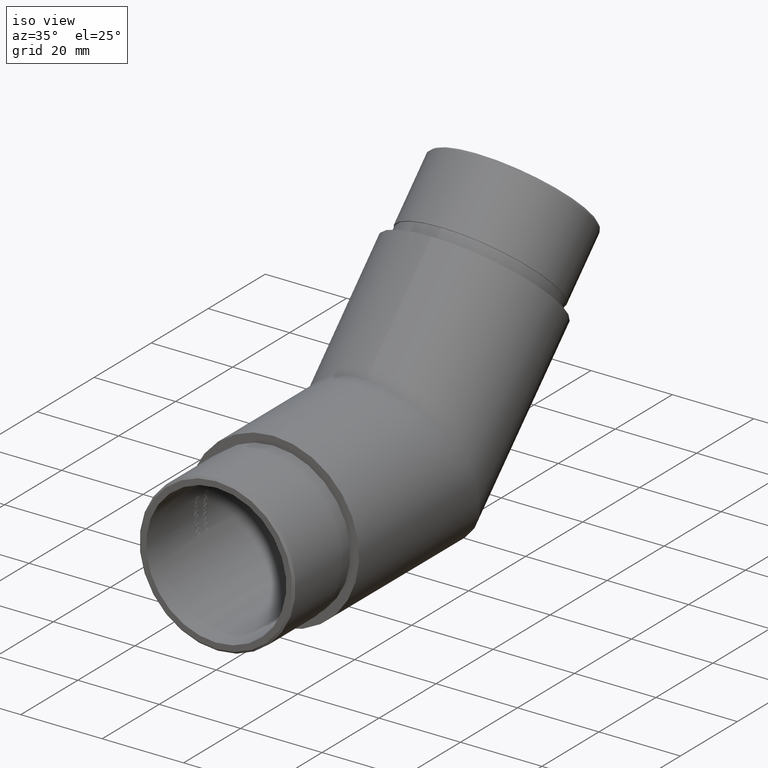
[diagram: clean part render]
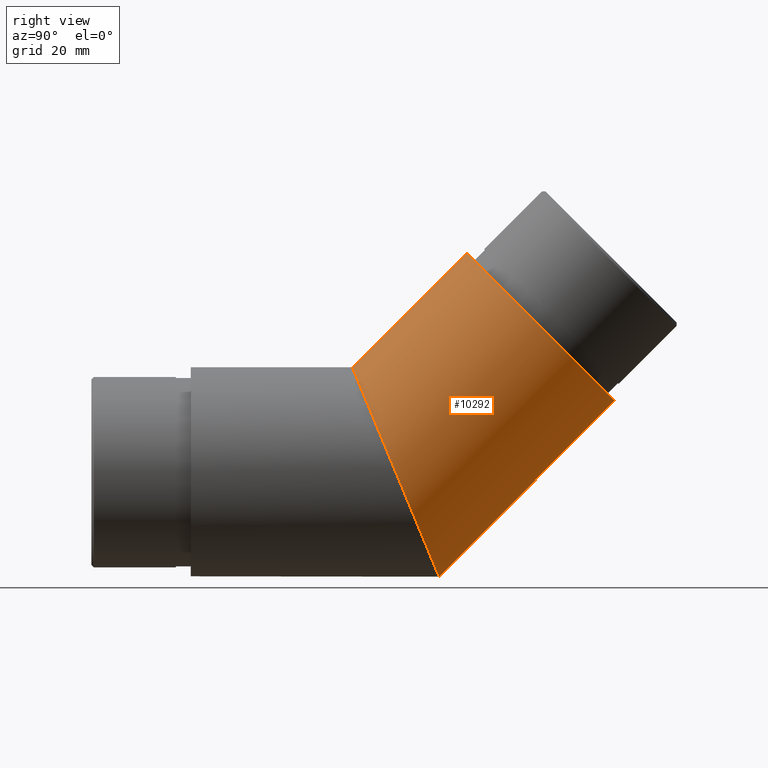
[diagram: tour spotlight — one face highlighted and labeled with its STEP entity id]
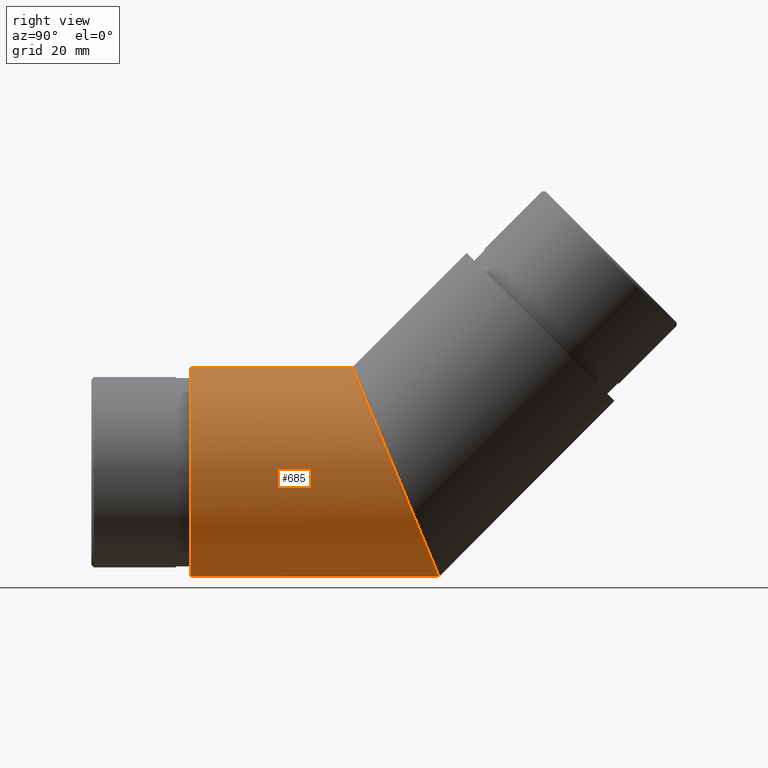
[diagram: tour spotlight — one face highlighted and labeled with its STEP entity id]
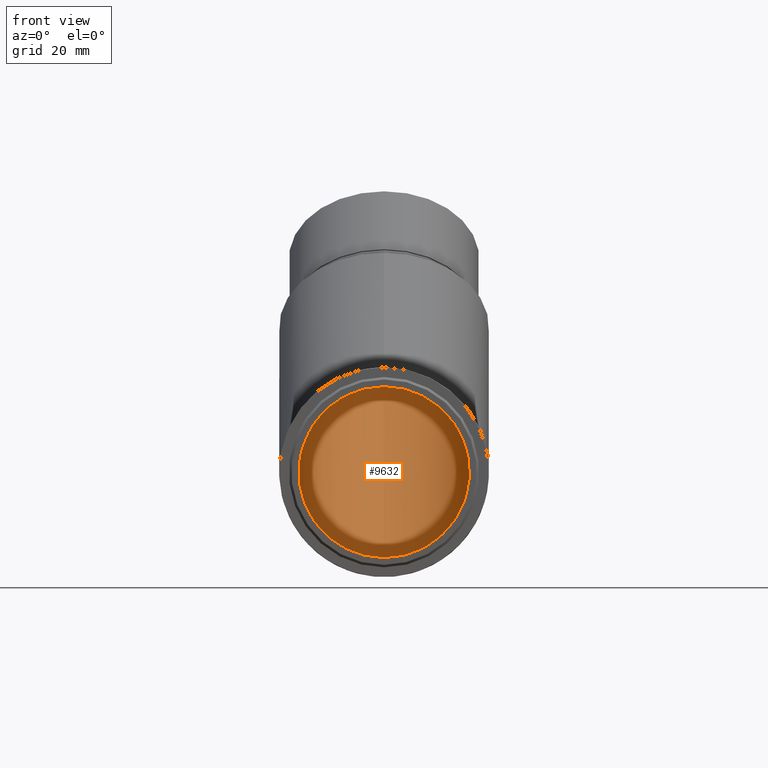
[diagram: tour spotlight — one face highlighted and labeled with its STEP entity id]
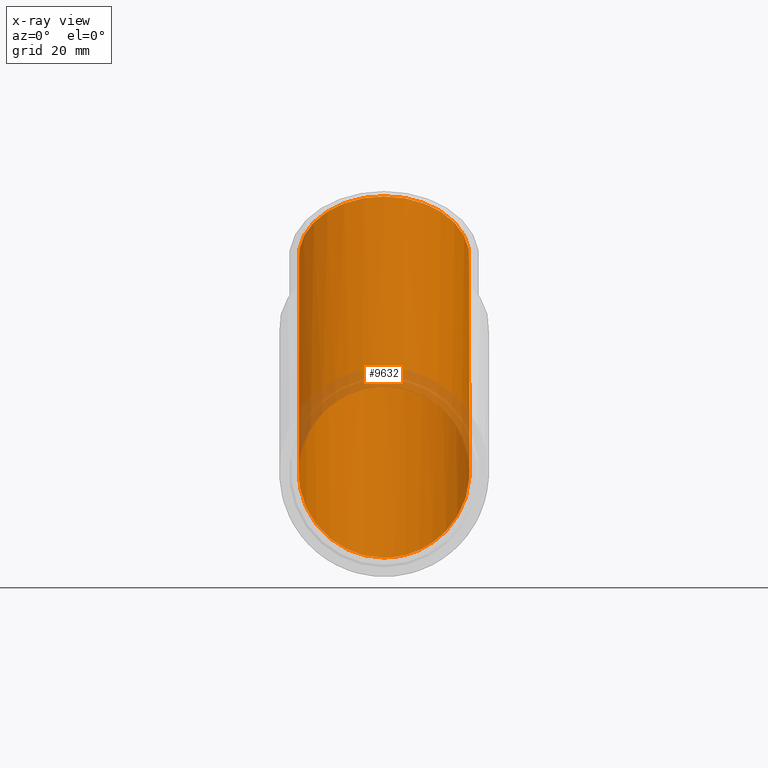
[diagram: x-ray of the same camera — body ghosted, this tour face saturated]
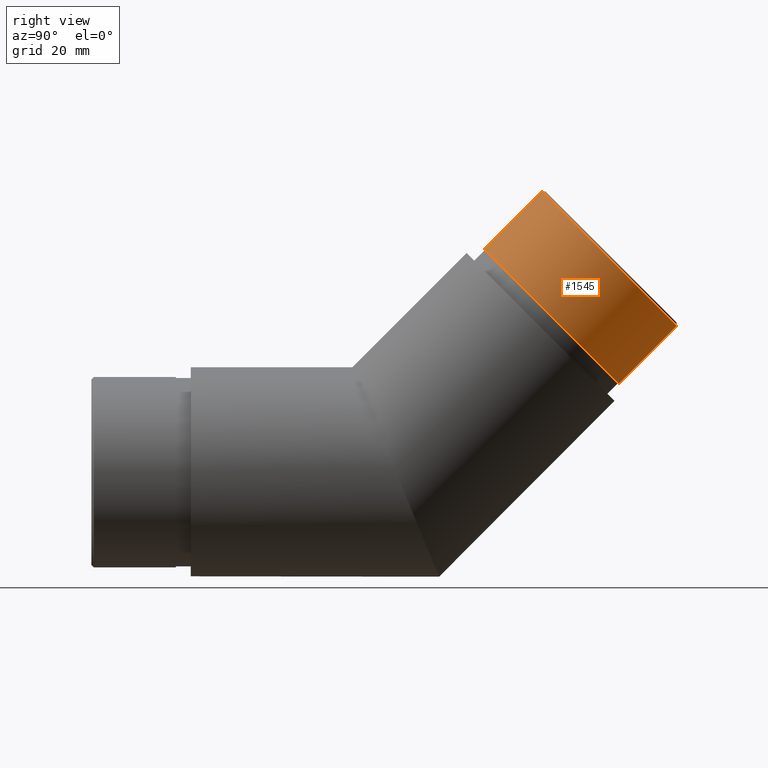
[diagram: tour spotlight — one face highlighted and labeled with its STEP entity id]
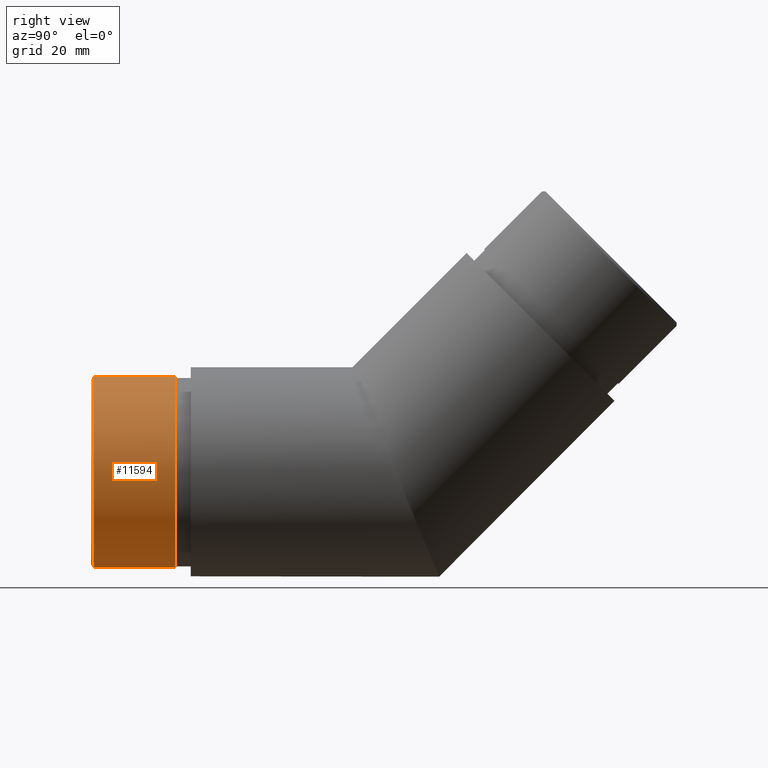
[diagram: tour spotlight — one face highlighted and labeled with its STEP entity id]
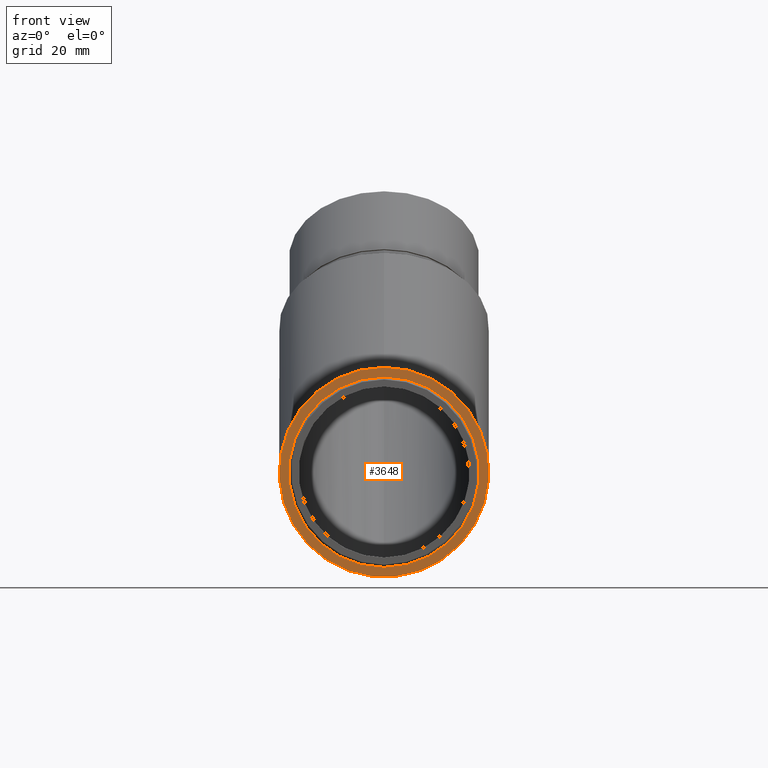
[diagram: tour spotlight — one face highlighted and labeled with its STEP entity id]
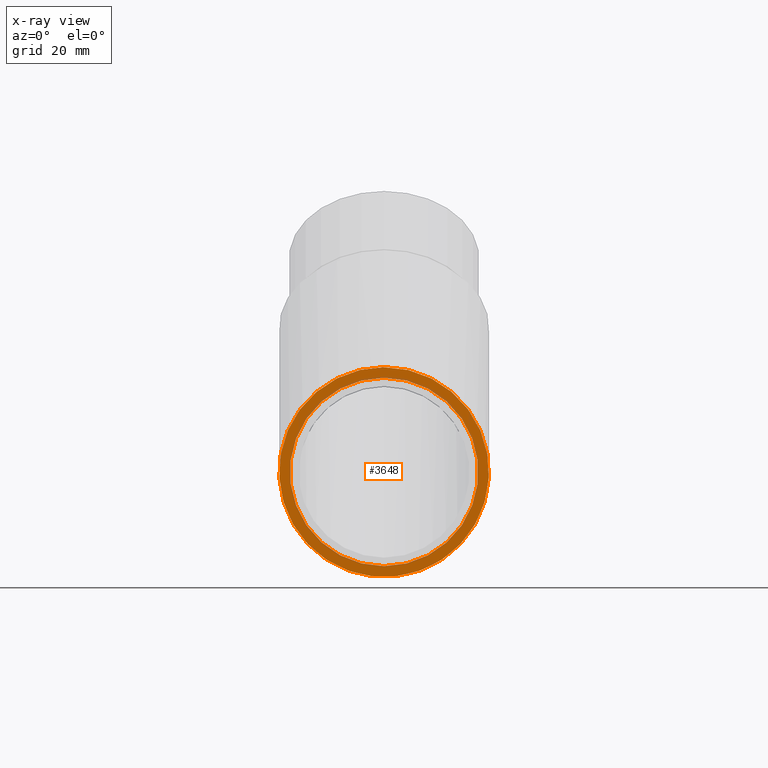
[diagram: x-ray of the same camera — body ghosted, this tour face saturated]
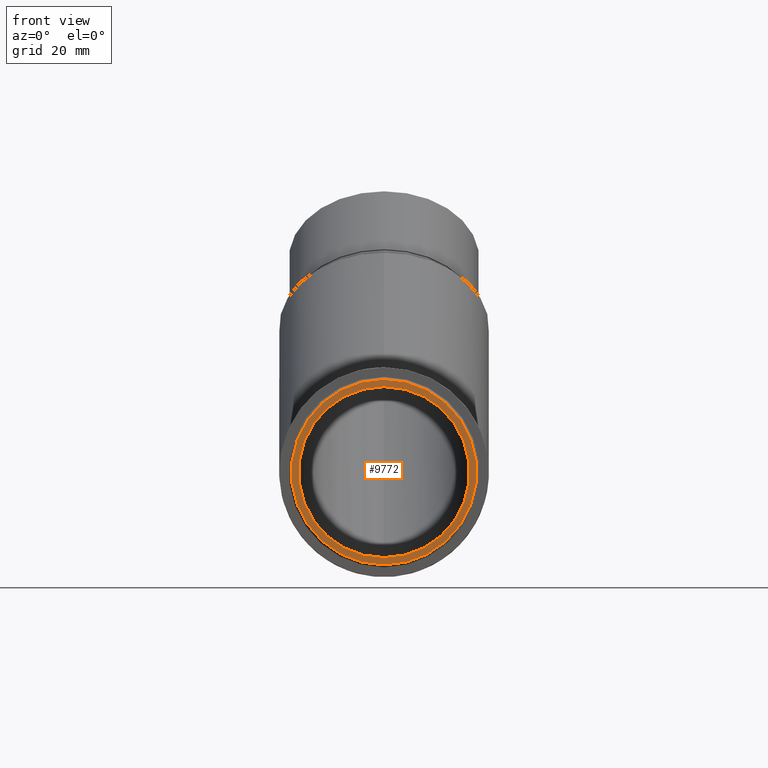
[diagram: tour spotlight — one face highlighted and labeled with its STEP entity id]
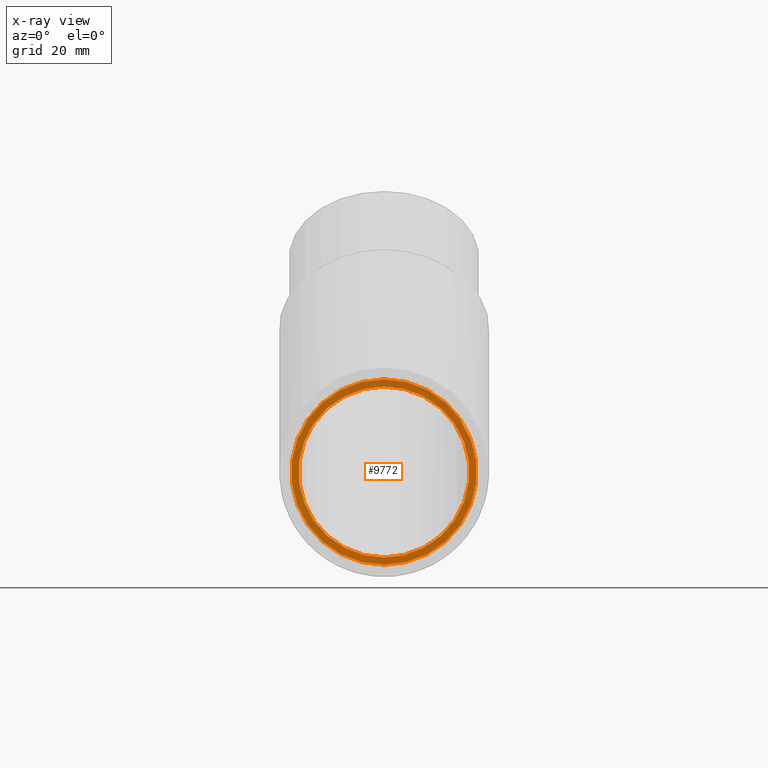
[diagram: x-ray of the same camera — body ghosted, this tour face saturated]
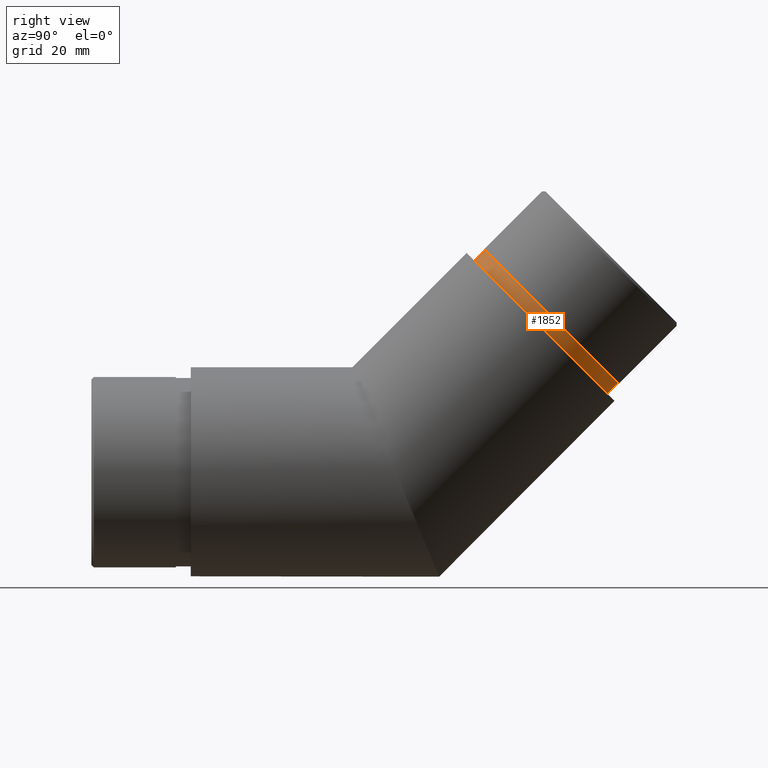
[diagram: tour spotlight — one face highlighted and labeled with its STEP entity id]
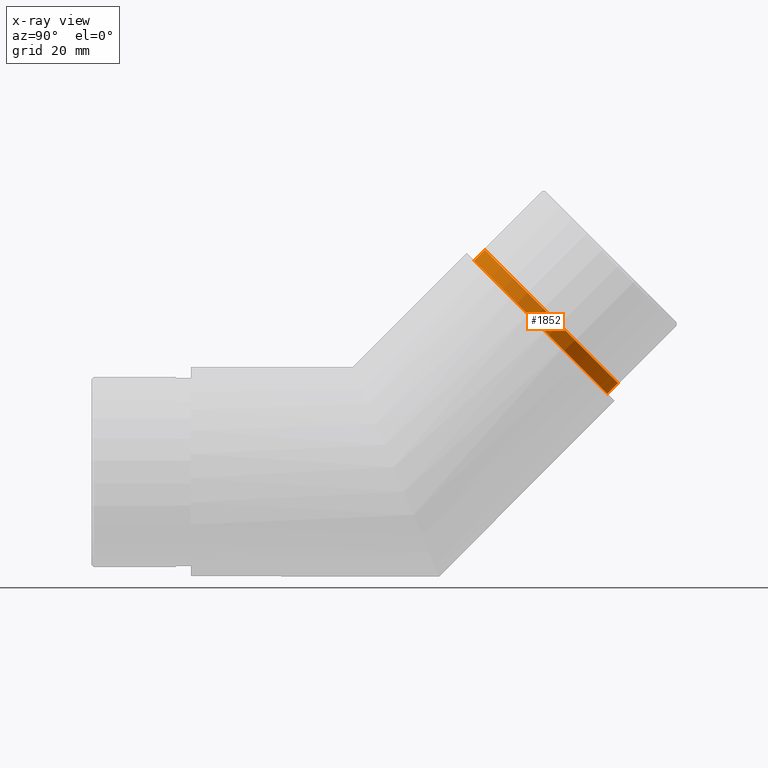
[diagram: x-ray of the same camera — body ghosted, this tour face saturated]
A machine part: a face-by-face anatomy tour. The part has 238 B-rep faces; the first image is the clean iso view, then the 8 largest visible faces are spotlighted one at a time (largest first), each with its STEP entity span.

Face 1 — right view, entity #10292. In plain terms, the highlighted cylindrical surface (bore or boss wall) has radius 21.1 mm, axis along (0, 0.7071, 0.7071).
Definition (entity closure, byte-faithful):
#265 = EDGE_CURVE ( 'NONE', #2019, #2019, #4202, .T. ) ;
#449 = ORIENTED_EDGE ( 'NONE', *, *, #11253, .T. ) ;
#1050 = ORIENTED_EDGE ( 'NONE', *, *, #265, .T. ) ;
#1765 = EDGE_LOOP ( 'NONE', ( #1050 ) ) ;
#2019 = VERTEX_POINT ( 'NONE', #12058 ) ;
#2087 = CARTESIAN_POINT ( 'NONE',  ( 0.0000000000000000000, 70.43538597629114400, 29.17529214236356700 ) ) ;
#2975 = CYLINDRICAL_SURFACE ( 'NONE', #8200, 21.09999999999999800 ) ;
#3739 = CARTESIAN_POINT ( 'NONE',  ( 0.0000000000000000000, 32.52018766785536000, 21.09999999999999800 ) ) ;
#4130 = CARTESIAN_POINT ( 'NONE',  ( -42.19999999999999600, 50.00000000000002100, -21.10000000000000100 ) ) ;
#4169 = CARTESIAN_POINT ( 'NONE',  ( 0.0000000000000000000, 32.52018766785536000, 21.09999999999999800 ) ) ;
#4202 = CIRCLE ( 'NONE', #4698, 21.09999999999999400 ) ;
#4698 = AXIS2_PLACEMENT_3D ( 'NONE', #2087, #6859, #4918 ) ;
#4830 = VERTEX_POINT ( 'NONE', #3739 ) ;
#4918 = DIRECTION ( 'NONE',  ( 0.0000000000000000000, -0.7071067811865487900, 0.7071067811865463500 ) ) ;
#5236 = DIRECTION ( 'NONE',  ( 0.0000000000000000000, 0.7071067811865463500, 0.7071067811865487900 ) ) ;
#6031 = CARTESIAN_POINT ( 'NONE',  ( -42.19999999999999600, 32.52018766785536000, 21.09999999999999800 ) ) ;
#6859 = DIRECTION ( 'NONE',  ( -0.0000000000000000000, -0.7071067811865463500, -0.7071067811865487900 ) ) ;
#7034 = FACE_OUTER_BOUND ( 'NONE', #1765, .T. ) ;
#7568 = CARTESIAN_POINT ( 'NONE',  ( 42.19999999999999600, 50.00000000000002100, -21.09999999999999400 ) ) ;
#7759 = CARTESIAN_POINT ( 'NONE',  ( 0.0000000000000000000, 32.52018766785536000, 21.09999999999999800 ) ) ;
#8168 = EDGE_LOOP ( 'NONE', ( #449 ) ) ;
#8200 = AXIS2_PLACEMENT_3D ( 'NONE', #8961, #5236, #10688 ) ;
#8737 =( BOUNDED_CURVE ( )  B_SPLINE_CURVE ( 3, ( #7759, #10721, #7568, #9791, #4130, #6031, #4169 ),
 .UNSPECIFIED., .T., .T. ) 
 B_SPLINE_CURVE_WITH_KNOTS ( ( 4, 3, 4 ),
 ( 0.0000000000000000000, 3.141592653589793100, 6.283185307179586200 ),
 .UNSPECIFIED. ) 
 CURVE ( )  GEOMETRIC_REPRESENTATION_ITEM ( )  RATIONAL_B_SPLINE_CURVE ( ( 1.000000000000000000, 0.3333333333333333700, 0.3333333333333333700, 1.000000000000000000, 0.3333333333333333700, 0.3333333333333333700, 1.000000000000000000 ) ) 
 REPRESENTATION_ITEM ( '' )  );
#8961 = CARTESIAN_POINT ( 'NONE',  ( 0.0000000000000000000, 41.26009383392769100, 0.0000000000000000000 ) ) ;
#9791 = CARTESIAN_POINT ( 'NONE',  ( 2.584004746200915400E-015, 50.00000000000001400, -21.09999999999999800 ) ) ;
#10292 = ADVANCED_FACE ( 'NONE', ( #11731, #7034 ), #2975, .T. ) ;
#10688 = DIRECTION ( 'NONE',  ( 0.0000000000000000000, -0.7071067811865487900, 0.7071067811865463500 ) ) ;
#10721 = CARTESIAN_POINT ( 'NONE',  ( 42.19999999999999600, 32.52018766785536000, 21.09999999999999800 ) ) ;
#11253 = EDGE_CURVE ( 'NONE', #4830, #4830, #8737, .T. ) ;
#11731 = FACE_OUTER_BOUND ( 'NONE', #8168, .T. ) ;
#12058 = CARTESIAN_POINT ( 'NONE',  ( 0.0000000000000000000, 55.51543289325497500, 44.09524522539968700 ) ) ;

Face 2 — right view, entity #685. In plain terms, the highlighted cylindrical surface (bore or boss wall) has radius 21.1 mm, axis along (-0, -1, -0).
Definition (entity closure, byte-faithful):
#4 = CYLINDRICAL_SURFACE ( 'NONE', #5247, 21.09999999999999800 ) ;
#685 = ADVANCED_FACE ( 'NONE', ( #3177, #877 ), #4, .T. ) ;
#837 = VERTEX_POINT ( 'NONE', #4567 ) ;
#877 = FACE_OUTER_BOUND ( 'NONE', #5693, .T. ) ;
#887 = EDGE_CURVE ( 'NONE', #837, #837, #8697, .T. ) ;
#917 = CARTESIAN_POINT ( 'NONE',  ( 0.0000000000000000000, 100.9399061660722900, 0.0000000000000000000 ) ) ;
#1295 = CARTESIAN_POINT ( 'NONE',  ( 0.0000000000000000000, 0.0000000000000000000, 0.0000000000000000000 ) ) ;
#1907 = AXIS2_PLACEMENT_3D ( 'NONE', #1295, #5861, #7722 ) ;
#2773 = DIRECTION ( 'NONE',  ( 0.0000000000000000000, 0.0000000000000000000, -1.000000000000000000 ) ) ;
#2817 = DIRECTION ( 'NONE',  ( -0.0000000000000000000, -1.000000000000000000, -0.0000000000000000000 ) ) ;
#3177 = FACE_OUTER_BOUND ( 'NONE', #3633, .T. ) ;
#3633 = EDGE_LOOP ( 'NONE', ( #5624 ) ) ;
#3739 = CARTESIAN_POINT ( 'NONE',  ( 0.0000000000000000000, 32.52018766785536000, 21.09999999999999800 ) ) ;
#4130 = CARTESIAN_POINT ( 'NONE',  ( -42.19999999999999600, 50.00000000000002100, -21.10000000000000100 ) ) ;
#4169 = CARTESIAN_POINT ( 'NONE',  ( 0.0000000000000000000, 32.52018766785536000, 21.09999999999999800 ) ) ;
#4567 = CARTESIAN_POINT ( 'NONE',  ( 0.0000000000000000000, 0.0000000000000000000, 21.09999999999999800 ) ) ;
#4830 = VERTEX_POINT ( 'NONE', #3739 ) ;
#5247 = AXIS2_PLACEMENT_3D ( 'NONE', #917, #2817, #2773 ) ;
#5624 = ORIENTED_EDGE ( 'NONE', *, *, #887, .T. ) ;
#5693 = EDGE_LOOP ( 'NONE', ( #10913 ) ) ;
#5861 = DIRECTION ( 'NONE',  ( 0.0000000000000000000, 1.000000000000000000, 0.0000000000000000000 ) ) ;
#6031 = CARTESIAN_POINT ( 'NONE',  ( -42.19999999999999600, 32.52018766785536000, 21.09999999999999800 ) ) ;
#7568 = CARTESIAN_POINT ( 'NONE',  ( 42.19999999999999600, 50.00000000000002100, -21.09999999999999400 ) ) ;
#7722 = DIRECTION ( 'NONE',  ( 0.0000000000000000000, 0.0000000000000000000, 1.000000000000000000 ) ) ;
#7759 = CARTESIAN_POINT ( 'NONE',  ( 0.0000000000000000000, 32.52018766785536000, 21.09999999999999800 ) ) ;
#8697 = CIRCLE ( 'NONE', #1907, 21.09999999999999800 ) ;
#8737 =( BOUNDED_CURVE ( )  B_SPLINE_CURVE ( 3, ( #7759, #10721, #7568, #9791, #4130, #6031, #4169 ),
 .UNSPECIFIED., .T., .T. ) 
 B_SPLINE_CURVE_WITH_KNOTS ( ( 4, 3, 4 ),
 ( 0.0000000000000000000, 3.141592653589793100, 6.283185307179586200 ),
 .UNSPECIFIED. ) 
 CURVE ( )  GEOMETRIC_REPRESENTATION_ITEM ( )  RATIONAL_B_SPLINE_CURVE ( ( 1.000000000000000000, 0.3333333333333333700, 0.3333333333333333700, 1.000000000000000000, 0.3333333333333333700, 0.3333333333333333700, 1.000000000000000000 ) ) 
 REPRESENTATION_ITEM ( '' )  );
#9791 = CARTESIAN_POINT ( 'NONE',  ( 2.584004746200915400E-015, 50.00000000000001400, -21.09999999999999800 ) ) ;
#10721 = CARTESIAN_POINT ( 'NONE',  ( 42.19999999999999600, 32.52018766785536000, 21.09999999999999800 ) ) ;
#10913 = ORIENTED_EDGE ( 'NONE', *, *, #11253, .F. ) ;
#11253 = EDGE_CURVE ( 'NONE', #4830, #4830, #8737, .T. ) ;

Face 3 — front view, entity #9632. An x-ray twin of the same camera follows (body ghosted, this face saturated) — the face is partly hidden behind the body. In plain terms, the highlighted cylindrical surface (bore or boss wall) has radius 17.2 mm, axis along (0, 0.7071, 0.7071).
Definition (entity closure, byte-faithful):
#142 = CIRCLE ( 'NONE', #3992, 17.19999999999999600 ) ;
#810 = EDGE_CURVE ( 'NONE', #6631, #6631, #142, .T. ) ;
#959 = CARTESIAN_POINT ( 'NONE',  ( 0.0000000000000000000, 34.13562056111043600, 17.20000000000000300 ) ) ;
#1398 = EDGE_LOOP ( 'NONE', ( #6666 ) ) ;
#2543 = CARTESIAN_POINT ( 'NONE',  ( 0.0000000000000000000, 41.26009383392769100, 0.0000000000000000000 ) ) ;
#3992 = AXIS2_PLACEMENT_3D ( 'NONE', #5681, #6607, #9931 ) ;
#4434 = CARTESIAN_POINT ( 'NONE',  ( -34.39999999999999900, 48.38456710674495300, -17.20000000000000600 ) ) ;
#5321 = CARTESIAN_POINT ( 'NONE',  ( 0.0000000000000000000, 34.13562056111043600, 17.20000000000000300 ) ) ;
#5421 = DIRECTION ( 'NONE',  ( 0.0000000000000000000, 0.7071067811865463500, 0.7071067811865487900 ) ) ;
#5681 = CARTESIAN_POINT ( 'NONE',  ( 0.0000000000000000000, 84.57752160002209500, 43.31742776609459600 ) ) ;
#6211 = CARTESIAN_POINT ( 'NONE',  ( -34.39999999999999900, 34.13562056111043600, 17.20000000000000300 ) ) ;
#6328 = CARTESIAN_POINT ( 'NONE',  ( 34.39999999999999900, 48.38456710674495300, -17.19999999999999900 ) ) ;
#6429 =( BOUNDED_CURVE ( )  B_SPLINE_CURVE ( 3, ( #11926, #10900, #6328, #9925, #4434, #6211, #5321 ),
 .UNSPECIFIED., .T., .F. ) 
 B_SPLINE_CURVE_WITH_KNOTS ( ( 4, 3, 4 ),
 ( 0.0000000000000000000, 3.141592653589793100, 6.283185307179586200 ),
 .UNSPECIFIED. ) 
 CURVE ( )  GEOMETRIC_REPRESENTATION_ITEM ( )  RATIONAL_B_SPLINE_CURVE ( ( 1.000000000000000000, 0.3333333333333333700, 0.3333333333333333700, 1.000000000000000000, 0.3333333333333333700, 0.3333333333333333700, 1.000000000000000000 ) ) 
 REPRESENTATION_ITEM ( '' )  );
#6566 = VERTEX_POINT ( 'NONE', #959 ) ;
#6607 = DIRECTION ( 'NONE',  ( -0.0000000000000000000, -0.7071067811865459100, -0.7071067811865492400 ) ) ;
#6631 = VERTEX_POINT ( 'NONE', #9192 ) ;
#6666 = ORIENTED_EDGE ( 'NONE', *, *, #810, .F. ) ;
#9192 = CARTESIAN_POINT ( 'NONE',  ( 0.0000000000000000000, 96.73975823643073100, 31.15519112968601000 ) ) ;
#9376 = FACE_OUTER_BOUND ( 'NONE', #1398, .T. ) ;
#9488 = AXIS2_PLACEMENT_3D ( 'NONE', #2543, #5421, #10216 ) ;
#9632 = ADVANCED_FACE ( 'NONE', ( #11157, #9376 ), #10695, .F. ) ;
#9925 = CARTESIAN_POINT ( 'NONE',  ( 2.106392494533447800E-015, 48.38456710674494600, -17.20000000000000300 ) ) ;
#9931 = DIRECTION ( 'NONE',  ( 0.0000000000000000000, 0.7071067811865491300, -0.7071067811865459100 ) ) ;
#9996 = EDGE_CURVE ( 'NONE', #6566, #6566, #6429, .T. ) ;
#10078 = EDGE_LOOP ( 'NONE', ( #11251 ) ) ;
#10216 = DIRECTION ( 'NONE',  ( 0.0000000000000000000, -0.7071067811865487900, 0.7071067811865462400 ) ) ;
#10695 = CYLINDRICAL_SURFACE ( 'NONE', #9488, 17.20000000000000300 ) ;
#10900 = CARTESIAN_POINT ( 'NONE',  ( 34.39999999999999900, 34.13562056111043600, 17.20000000000000300 ) ) ;
#11157 = FACE_OUTER_BOUND ( 'NONE', #10078, .T. ) ;
#11251 = ORIENTED_EDGE ( 'NONE', *, *, #9996, .F. ) ;
#11926 = CARTESIAN_POINT ( 'NONE',  ( 0.0000000000000000000, 34.13562056111043600, 17.20000000000000300 ) ) ;

Face 4 — right view, entity #1545. In plain terms, the highlighted cylindrical surface (bore or boss wall) has radius 19.15 mm, axis along (-0, -0.7071, -0.7071).
Definition (entity closure, byte-faithful):
#186 = VERTEX_POINT ( 'NONE', #3704 ) ;
#1324 = DIRECTION ( 'NONE',  ( 0.0000000000000000000, -0.7071067811865476800, 0.7071067811865472400 ) ) ;
#1480 = AXIS2_PLACEMENT_3D ( 'NONE', #11451, #8578, #1324 ) ;
#1545 = ADVANCED_FACE ( 'NONE', ( #7961, #8698 ), #6795, .T. ) ;
#1596 = CIRCLE ( 'NONE', #10250, 19.15000000000000200 ) ;
#1791 = VERTEX_POINT ( 'NONE', #10122 ) ;
#1810 = CARTESIAN_POINT ( 'NONE',  ( 0.0000000000000000000, 72.55670631985081800, 31.29661248592325500 ) ) ;
#2286 = AXIS2_PLACEMENT_3D ( 'NONE', #9235, #11138, #4575 ) ;
#2945 = ORIENTED_EDGE ( 'NONE', *, *, #5547, .F. ) ;
#3117 = ORIENTED_EDGE ( 'NONE', *, *, #7869, .T. ) ;
#3704 = CARTESIAN_POINT ( 'NONE',  ( 0.0000000000000000000, 70.68287334970642600, 56.50496923522371200 ) ) ;
#4559 = DIRECTION ( 'NONE',  ( -0.0000000000000000000, -0.7071067811865459100, -0.7071067811865492400 ) ) ;
#4575 = DIRECTION ( 'NONE',  ( 0.0000000000000000000, 0.7071067811865491300, -0.7071067811865459100 ) ) ;
#5547 = EDGE_CURVE ( 'NONE', #1791, #1791, #1596, .T. ) ;
#6316 = EDGE_LOOP ( 'NONE', ( #2945 ) ) ;
#6795 = CYLINDRICAL_SURFACE ( 'NONE', #2286, 19.15000000000000900 ) ;
#6829 = EDGE_LOOP ( 'NONE', ( #3117 ) ) ;
#7869 = EDGE_CURVE ( 'NONE', #186, #186, #12038, .T. ) ;
#7961 = FACE_OUTER_BOUND ( 'NONE', #6829, .T. ) ;
#8578 = DIRECTION ( 'NONE',  ( -0.0000000000000000000, -0.7071067811865475700, -0.7071067811865475700 ) ) ;
#8698 = FACE_OUTER_BOUND ( 'NONE', #6316, .T. ) ;
#9235 = CARTESIAN_POINT ( 'NONE',  ( 0.0000000000000000000, 84.57752160002209500, 43.31742776609459600 ) ) ;
#10122 = CARTESIAN_POINT ( 'NONE',  ( 0.0000000000000000000, 86.09780117957323900, 17.75551762620090200 ) ) ;
#10250 = AXIS2_PLACEMENT_3D ( 'NONE', #1810, #4559, #12049 ) ;
#11138 = DIRECTION ( 'NONE',  ( -0.0000000000000000000, -0.7071067811865459100, -0.7071067811865492400 ) ) ;
#11451 = CARTESIAN_POINT ( 'NONE',  ( 0.0000000000000000000, 84.22396820942881800, 42.96387437550132700 ) ) ;
#12038 = CIRCLE ( 'NONE', #1480, 19.15000000000000900 ) ;
#12049 = DIRECTION ( 'NONE',  ( 0.0000000000000000000, 0.7071067811865493500, -0.7071067811865458000 ) ) ;

Face 5 — right view, entity #11594. In plain terms, the highlighted cylindrical surface (bore or boss wall) has radius 19.15 mm, axis along (-0, 1, -0).
Definition (entity closure, byte-faithful):
#139 = CYLINDRICAL_SURFACE ( 'NONE', #8672, 19.15000000000000200 ) ;
#198 = AXIS2_PLACEMENT_3D ( 'NONE', #1741, #5378, #8216 ) ;
#852 = DIRECTION ( 'NONE',  ( -0.0000000000000000000, 1.000000000000000000, -0.0000000000000000000 ) ) ;
#1448 = EDGE_CURVE ( 'NONE', #5449, #5449, #11487, .T. ) ;
#1741 = CARTESIAN_POINT ( 'NONE',  ( 0.0000000000000000000, -3.000000000000000000, 0.0000000000000000000 ) ) ;
#1855 = CARTESIAN_POINT ( 'NONE',  ( 0.0000000000000000000, -3.000000000000000000, -19.15000000000000200 ) ) ;
#2134 = DIRECTION ( 'NONE',  ( 0.0000000000000000000, 0.0000000000000000000, -1.000000000000000000 ) ) ;
#2221 = EDGE_LOOP ( 'NONE', ( #10032 ) ) ;
#2747 = FACE_OUTER_BOUND ( 'NONE', #5127, .T. ) ;
#3023 = DIRECTION ( 'NONE',  ( 0.0000000000000000000, 1.000000000000000000, 0.0000000000000000000 ) ) ;
#3523 = VERTEX_POINT ( 'NONE', #3855 ) ;
#3855 = CARTESIAN_POINT ( 'NONE',  ( 0.0000000000000000000, -19.49999999999999300, -19.15000000000000200 ) ) ;
#4582 = DIRECTION ( 'NONE',  ( 0.0000000000000000000, 0.0000000000000000000, 1.000000000000000000 ) ) ;
#4774 = CARTESIAN_POINT ( 'NONE',  ( 0.0000000000000000000, -19.49999999999999300, 0.0000000000000000000 ) ) ;
#4938 = ORIENTED_EDGE ( 'NONE', *, *, #10515, .T. ) ;
#5127 = EDGE_LOOP ( 'NONE', ( #4938 ) ) ;
#5378 = DIRECTION ( 'NONE',  ( 0.0000000000000000000, -1.000000000000000000, 0.0000000000000000000 ) ) ;
#5449 = VERTEX_POINT ( 'NONE', #1855 ) ;
#5501 = FACE_OUTER_BOUND ( 'NONE', #2221, .T. ) ;
#6393 = CARTESIAN_POINT ( 'NONE',  ( 0.0000000000000000000, -20.00000000000000000, 0.0000000000000000000 ) ) ;
#6446 = CIRCLE ( 'NONE', #6485, 19.15000000000000200 ) ;
#6485 = AXIS2_PLACEMENT_3D ( 'NONE', #4774, #3023, #2134 ) ;
#8216 = DIRECTION ( 'NONE',  ( 0.0000000000000000000, 0.0000000000000000000, -1.000000000000000000 ) ) ;
#8672 = AXIS2_PLACEMENT_3D ( 'NONE', #6393, #852, #4582 ) ;
#10032 = ORIENTED_EDGE ( 'NONE', *, *, #1448, .T. ) ;
#10515 = EDGE_CURVE ( 'NONE', #3523, #3523, #6446, .T. ) ;
#11487 = CIRCLE ( 'NONE', #198, 19.15000000000000200 ) ;
#11594 = ADVANCED_FACE ( 'NONE', ( #2747, #5501 ), #139, .T. ) ;

Face 6 — front view, entity #3648. An x-ray twin of the same camera follows (body ghosted, this face saturated) — the face is partly hidden behind the body. In plain terms, the highlighted planar face has unit normal (0, 1, 0).
Definition (entity closure, byte-faithful):
#412 = FACE_BOUND ( 'NONE', #5538, .T. ) ;
#837 = VERTEX_POINT ( 'NONE', #4567 ) ;
#887 = EDGE_CURVE ( 'NONE', #837, #837, #8697, .T. ) ;
#1234 = VERTEX_POINT ( 'NONE', #9268 ) ;
#1295 = CARTESIAN_POINT ( 'NONE',  ( 0.0000000000000000000, 0.0000000000000000000, 0.0000000000000000000 ) ) ;
#1907 = AXIS2_PLACEMENT_3D ( 'NONE', #1295, #5861, #7722 ) ;
#2234 = CARTESIAN_POINT ( 'NONE',  ( 0.0000000000000000000, 0.0000000000000000000, 0.0000000000000000000 ) ) ;
#2419 = CARTESIAN_POINT ( 'NONE',  ( 0.0000000000000000000, 0.0000000000000000000, 0.0000000000000000000 ) ) ;
#2686 = EDGE_CURVE ( 'NONE', #1234, #1234, #7373, .T. ) ;
#3648 = ADVANCED_FACE ( 'NONE', ( #9412, #412 ), #4283, .F. ) ;
#4049 = DIRECTION ( 'NONE',  ( 0.0000000000000000000, 0.0000000000000000000, 1.000000000000000000 ) ) ;
#4283 = PLANE ( 'NONE',  #8047 ) ;
#4567 = CARTESIAN_POINT ( 'NONE',  ( 0.0000000000000000000, 0.0000000000000000000, 21.09999999999999800 ) ) ;
#5095 = DIRECTION ( 'NONE',  ( 0.0000000000000000000, 1.000000000000000000, 0.0000000000000000000 ) ) ;
#5538 = EDGE_LOOP ( 'NONE', ( #9168 ) ) ;
#5861 = DIRECTION ( 'NONE',  ( 0.0000000000000000000, 1.000000000000000000, 0.0000000000000000000 ) ) ;
#7373 = CIRCLE ( 'NONE', #8955, 18.95000000000001000 ) ;
#7563 = ORIENTED_EDGE ( 'NONE', *, *, #887, .F. ) ;
#7722 = DIRECTION ( 'NONE',  ( 0.0000000000000000000, 0.0000000000000000000, 1.000000000000000000 ) ) ;
#8047 = AXIS2_PLACEMENT_3D ( 'NONE', #2419, #5095, #11609 ) ;
#8645 = DIRECTION ( 'NONE',  ( -0.0000000000000000000, -1.000000000000000000, -0.0000000000000000000 ) ) ;
#8697 = CIRCLE ( 'NONE', #1907, 21.09999999999999800 ) ;
#8955 = AXIS2_PLACEMENT_3D ( 'NONE', #2234, #8645, #4049 ) ;
#9033 = EDGE_LOOP ( 'NONE', ( #7563 ) ) ;
#9168 = ORIENTED_EDGE ( 'NONE', *, *, #2686, .F. ) ;
#9268 = CARTESIAN_POINT ( 'NONE',  ( 0.0000000000000000000, 0.0000000000000000000, 18.95000000000001000 ) ) ;
#9412 = FACE_OUTER_BOUND ( 'NONE', #9033, .T. ) ;
#11609 = DIRECTION ( 'NONE',  ( 0.0000000000000000000, -0.0000000000000000000, 1.000000000000000000 ) ) ;

Face 7 — front view, entity #9772. An x-ray twin of the same camera follows (body ghosted, this face saturated) — the face is partly hidden behind the body. In plain terms, the highlighted planar face has unit normal (0, -1, 0).
Definition (entity closure, byte-faithful):
#71 = DIRECTION ( 'NONE',  ( 0.0000000000000000000, -1.000000000000000000, 0.0000000000000000000 ) ) ;
#429 = EDGE_LOOP ( 'NONE', ( #9474 ) ) ;
#523 = DIRECTION ( 'NONE',  ( 0.0000000000000000000, 0.0000000000000000000, -1.000000000000000000 ) ) ;
#990 = AXIS2_PLACEMENT_3D ( 'NONE', #1533, #8112, #10862 ) ;
#998 = DIRECTION ( 'NONE',  ( 0.0000000000000000000, -0.0000000000000000000, -1.000000000000000000 ) ) ;
#1027 = CIRCLE ( 'NONE', #990, 18.64999999999999900 ) ;
#1128 = EDGE_CURVE ( 'NONE', #9093, #9093, #10293, .T. ) ;
#1170 = ORIENTED_EDGE ( 'NONE', *, *, #4573, .T. ) ;
#1350 = EDGE_LOOP ( 'NONE', ( #1170 ) ) ;
#1533 = CARTESIAN_POINT ( 'NONE',  ( 0.0000000000000000000, -20.00000000000000000, 0.0000000000000000000 ) ) ;
#3223 = CARTESIAN_POINT ( 'NONE',  ( 0.0000000000000000000, -20.00000000000000000, 0.0000000000000000000 ) ) ;
#3986 = FACE_OUTER_BOUND ( 'NONE', #1350, .T. ) ;
#4573 = EDGE_CURVE ( 'NONE', #10302, #10302, #1027, .T. ) ;
#4807 = CARTESIAN_POINT ( 'NONE',  ( 0.0000000000000000000, -20.00000000000000000, 0.0000000000000000000 ) ) ;
#5132 = AXIS2_PLACEMENT_3D ( 'NONE', #4807, #71, #998 ) ;
#5259 = DIRECTION ( 'NONE',  ( 0.0000000000000000000, -1.000000000000000000, 0.0000000000000000000 ) ) ;
#5768 = PLANE ( 'NONE',  #5132 ) ;
#7386 = CARTESIAN_POINT ( 'NONE',  ( 0.0000000000000000000, -20.00000000000000000, -17.19999999999999900 ) ) ;
#8050 = FACE_BOUND ( 'NONE', #429, .T. ) ;
#8112 = DIRECTION ( 'NONE',  ( 0.0000000000000000000, -1.000000000000000000, 0.0000000000000000000 ) ) ;
#9093 = VERTEX_POINT ( 'NONE', #7386 ) ;
#9474 = ORIENTED_EDGE ( 'NONE', *, *, #1128, .F. ) ;
#9772 = ADVANCED_FACE ( 'NONE', ( #3986, #8050 ), #5768, .T. ) ;
#10210 = CARTESIAN_POINT ( 'NONE',  ( 0.0000000000000000000, -20.00000000000000000, -18.64999999999999900 ) ) ;
#10293 = CIRCLE ( 'NONE', #11649, 17.19999999999999900 ) ;
#10302 = VERTEX_POINT ( 'NONE', #10210 ) ;
#10862 = DIRECTION ( 'NONE',  ( 0.0000000000000000000, 0.0000000000000000000, -1.000000000000000000 ) ) ;
#11649 = AXIS2_PLACEMENT_3D ( 'NONE', #3223, #5259, #523 ) ;

Face 8 — right view, entity #1852. An x-ray twin of the same camera follows (body ghosted, this face saturated) — the face is partly hidden behind the body. In plain terms, the highlighted cylindrical surface (bore or boss wall) has radius 18.95 mm, axis along (-0, -0.7071, -0.7071).
Definition (entity closure, byte-faithful):
#311 = EDGE_LOOP ( 'NONE', ( #11352 ) ) ;
#1852 = ADVANCED_FACE ( 'NONE', ( #7385, #11638 ), #4787, .T. ) ;
#2702 = DIRECTION ( 'NONE',  ( 0.0000000000000000000, -0.7071067811865486800, 0.7071067811865464600 ) ) ;
#2780 = EDGE_LOOP ( 'NONE', ( #8600 ) ) ;
#3225 = VERTEX_POINT ( 'NONE', #7432 ) ;
#3520 = EDGE_CURVE ( 'NONE', #6794, #6794, #10283, .T. ) ;
#3550 = CARTESIAN_POINT ( 'NONE',  ( 0.0000000000000000000, 70.43538597629113000, 29.17529214236357000 ) ) ;
#3582 = AXIS2_PLACEMENT_3D ( 'NONE', #10570, #6780, #7784 ) ;
#4607 = CARTESIAN_POINT ( 'NONE',  ( 0.0000000000000000000, 59.15703281636569200, 44.69628598940831000 ) ) ;
#4775 = AXIS2_PLACEMENT_3D ( 'NONE', #7018, #7138, #11854 ) ;
#4787 = CYLINDRICAL_SURFACE ( 'NONE', #4775, 18.95000000000001000 ) ;
#5128 = EDGE_CURVE ( 'NONE', #3225, #3225, #9892, .T. ) ;
#5492 = DIRECTION ( 'NONE',  ( 0.0000000000000000000, 0.7071067811865463500, 0.7071067811865487900 ) ) ;
#6780 = DIRECTION ( 'NONE',  ( -0.0000000000000000000, -0.7071067811865459100, -0.7071067811865492400 ) ) ;
#6794 = VERTEX_POINT ( 'NONE', #4607 ) ;
#7018 = CARTESIAN_POINT ( 'NONE',  ( 0.0000000000000000000, 72.55670631985081800, 31.29661248592325500 ) ) ;
#7138 = DIRECTION ( 'NONE',  ( -0.0000000000000000000, -0.7071067811865459100, -0.7071067811865492400 ) ) ;
#7385 = FACE_OUTER_BOUND ( 'NONE', #311, .T. ) ;
#7432 = CARTESIAN_POINT ( 'NONE',  ( 0.0000000000000000000, 57.03571247280603300, 42.57496564584862900 ) ) ;
#7644 = AXIS2_PLACEMENT_3D ( 'NONE', #3550, #5492, #2702 ) ;
#7784 = DIRECTION ( 'NONE',  ( 0.0000000000000000000, -0.7071067811865492400, 0.7071067811865459100 ) ) ;
#8600 = ORIENTED_EDGE ( 'NONE', *, *, #5128, .T. ) ;
#9892 = CIRCLE ( 'NONE', #7644, 18.95000000000000600 ) ;
#10283 = CIRCLE ( 'NONE', #3582, 18.95000000000001000 ) ;
#10570 = CARTESIAN_POINT ( 'NONE',  ( 0.0000000000000000000, 72.55670631985081800, 31.29661248592325500 ) ) ;
#11352 = ORIENTED_EDGE ( 'NONE', *, *, #3520, .T. ) ;
#11638 = FACE_OUTER_BOUND ( 'NONE', #2780, .T. ) ;
#11854 = DIRECTION ( 'NONE',  ( 0.0000000000000000000, 0.7071067811865492400, -0.7071067811865459100 ) ) ;